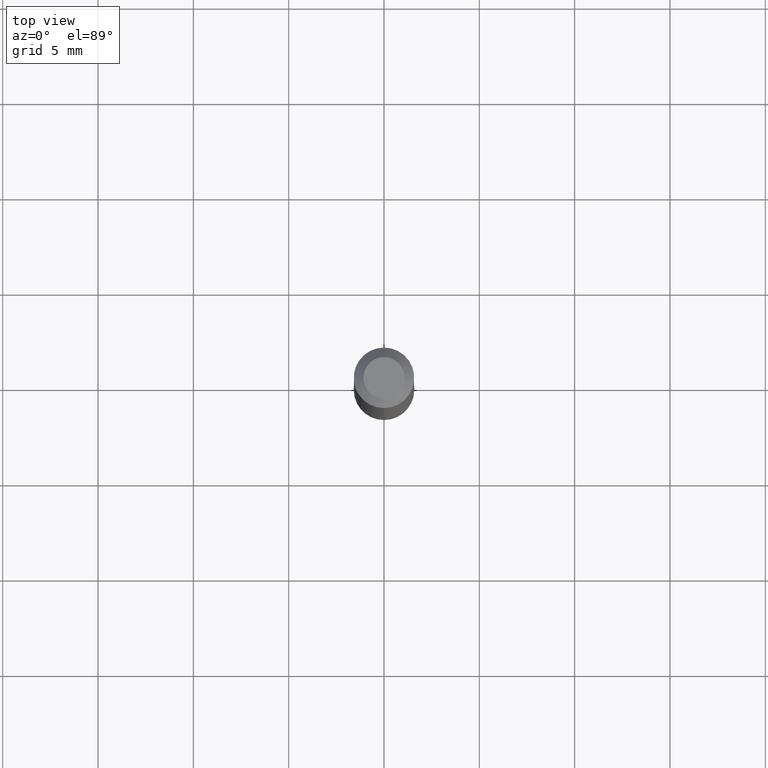
[diagram: clean part render]
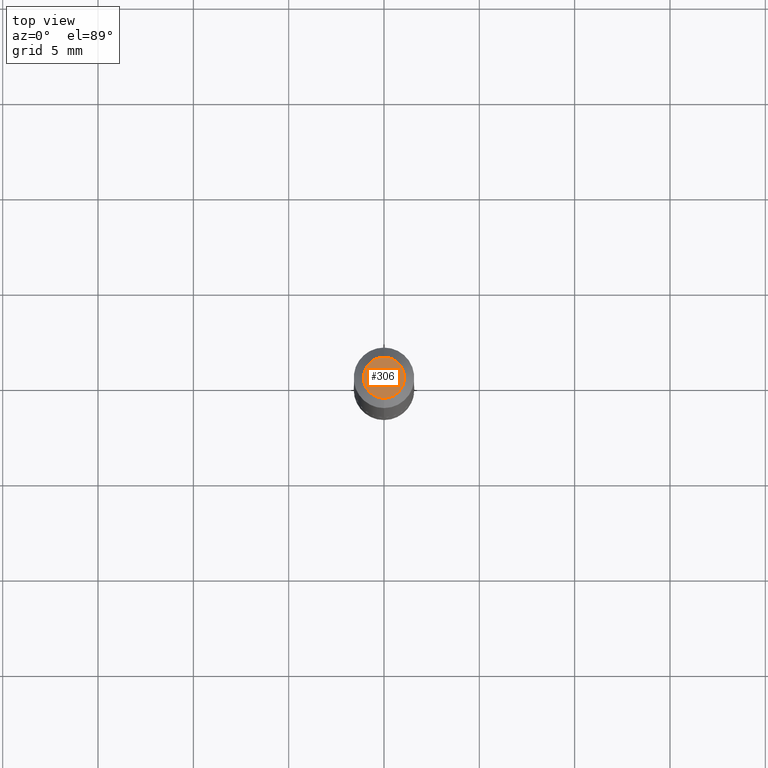
[diagram: same view with one face highlighted and labeled with its STEP entity id]
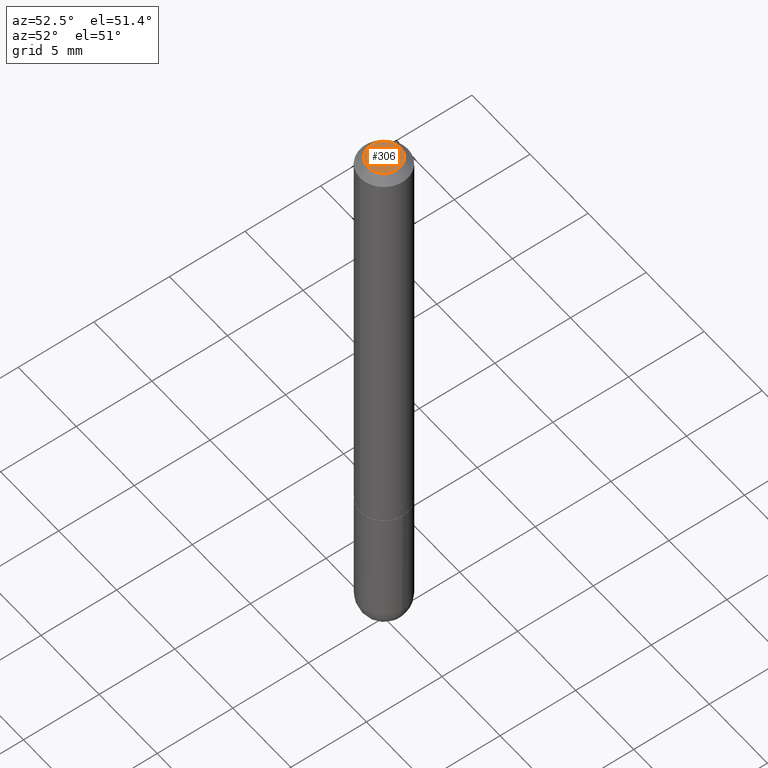
[diagram: same view with one face highlighted and labeled with its STEP entity id]
A machine part, top view. The second image highlights one B-rep face of the part: STEP entity #306.
A second angle (auxiliary view) of the same face is appended — the face is thin or edge-on in the first view.
In plain terms, the highlighted planar face has unit normal (0, -0, -1).
Its self-contained STEP definition (entity closure, byte-faithful):
#8 = DIRECTION ( 'NONE',  ( 2.425575196099975633E-29, -3.519970120759064703E-15, -1.000000000000000000 ) ) ;
#35 = PLANE ( 'NONE',  #180 ) ;
#42 = VERTEX_POINT ( 'NONE', #342 ) ;
#56 = ORIENTED_EDGE ( 'NONE', *, *, #58, .T. ) ;
#58 = EDGE_CURVE ( 'NONE', #42, #305, #327, .T. ) ;
#68 = CARTESIAN_POINT ( 'NONE',  ( -5.206167225297751626E-45, 7.555137068596522617E-31, 2.146363977364470844E-16 ) ) ;
#104 = FACE_OUTER_BOUND ( 'NONE', #176, .T. ) ;
#124 = DIRECTION ( 'NONE',  ( -6.982962677686265922E-15, -1.000000000000000000, 3.519970120759063914E-15 ) ) ;
#136 = DIRECTION ( 'NONE',  ( -6.982962677686265922E-15, -1.000000000000000000, 3.519970120759063914E-15 ) ) ;
#146 = ORIENTED_EDGE ( 'NONE', *, *, #193, .T. ) ;
#176 = EDGE_LOOP ( 'NONE', ( #146, #56 ) ) ;
#180 = AXIS2_PLACEMENT_3D ( 'NONE', #295, #8, #262 ) ;
#193 = EDGE_CURVE ( 'NONE', #305, #42, #293, .T. ) ;
#199 = DIRECTION ( 'NONE',  ( -2.425575196099976193E-29, 3.519970120759064308E-15, 1.000000000000000000 ) ) ;
#228 = AXIS2_PLACEMENT_3D ( 'NONE', #343, #288, #124 ) ;
#262 = DIRECTION ( 'NONE',  ( 6.982962677686265922E-15, 1.000000000000000000, -3.519970120759064703E-15 ) ) ;
#288 = DIRECTION ( 'NONE',  ( -2.425575196099976193E-29, 3.519970120759064308E-15, 1.000000000000000000 ) ) ;
#293 = CIRCLE ( 'NONE', #381, 0.04249999999999968386 ) ;
#295 = CARTESIAN_POINT ( 'NONE',  ( 2.967759138016640869E-16, 0.04249999999999968386, -4.228053126403555175E-17 ) ) ;
#305 = VERTEX_POINT ( 'NONE', #351 ) ;
#306 = ADVANCED_FACE ( 'NONE', ( #104 ), #35, .F. ) ;
#327 = CIRCLE ( 'NONE', #228, 0.04249999999999968386 ) ;
#342 = CARTESIAN_POINT ( 'NONE',  ( -3.601761448830038135E-16, -0.04249999999999968386, 3.642351278687062092E-16 ) ) ;
#343 = CARTESIAN_POINT ( 'NONE',  ( -5.206167225297751626E-45, 7.555137068596522617E-31, 2.146363977364470844E-16 ) ) ;
#351 = CARTESIAN_POINT ( 'NONE',  ( 3.666055405785279275E-16, 0.04249999999999968386, 6.503766760418795964E-17 ) ) ;
#381 = AXIS2_PLACEMENT_3D ( 'NONE', #68, #199, #136 ) ;